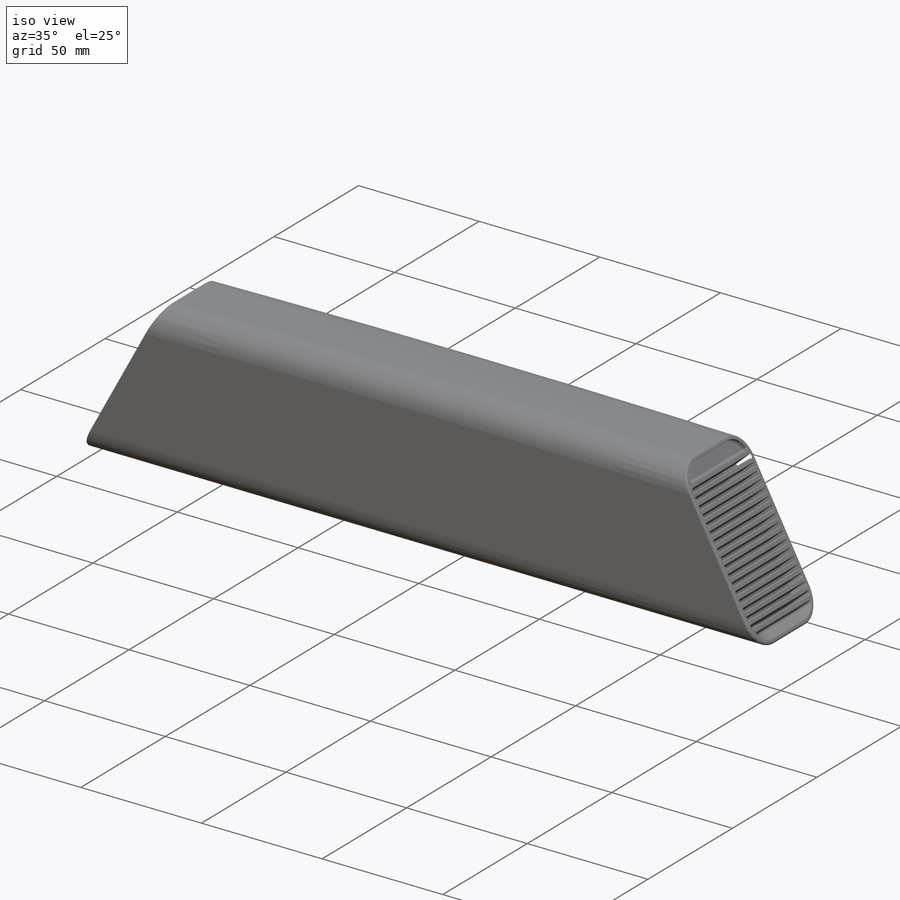
[diagram: iso view]
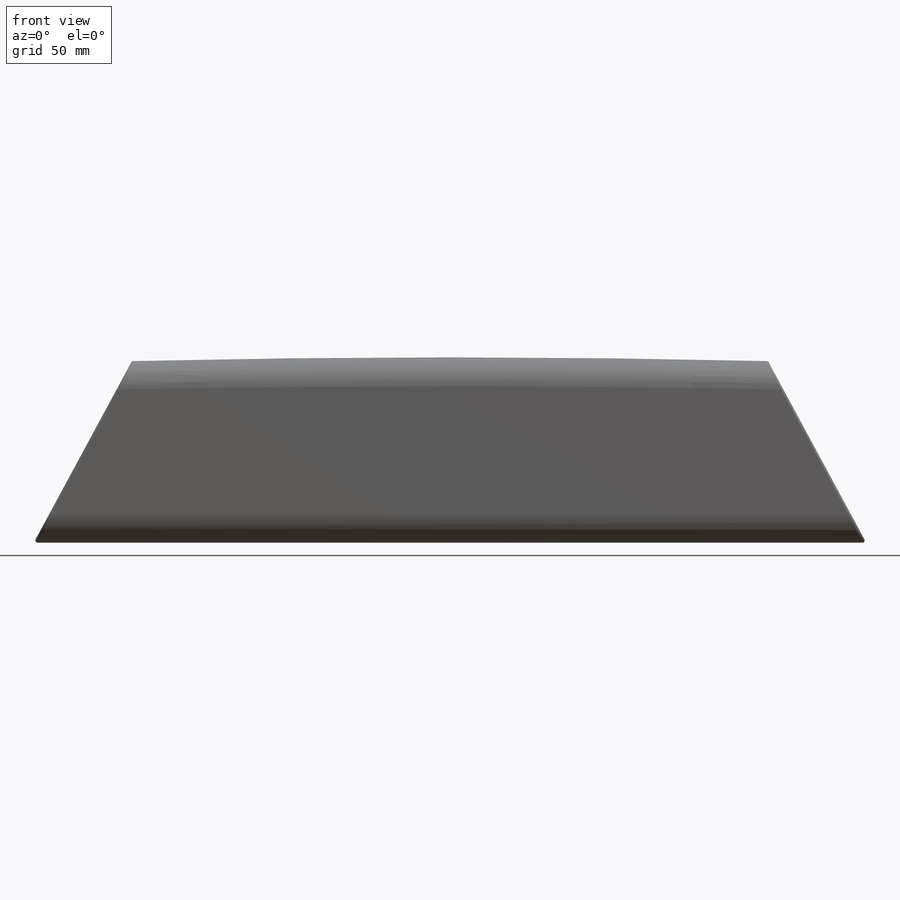
[diagram: front view]
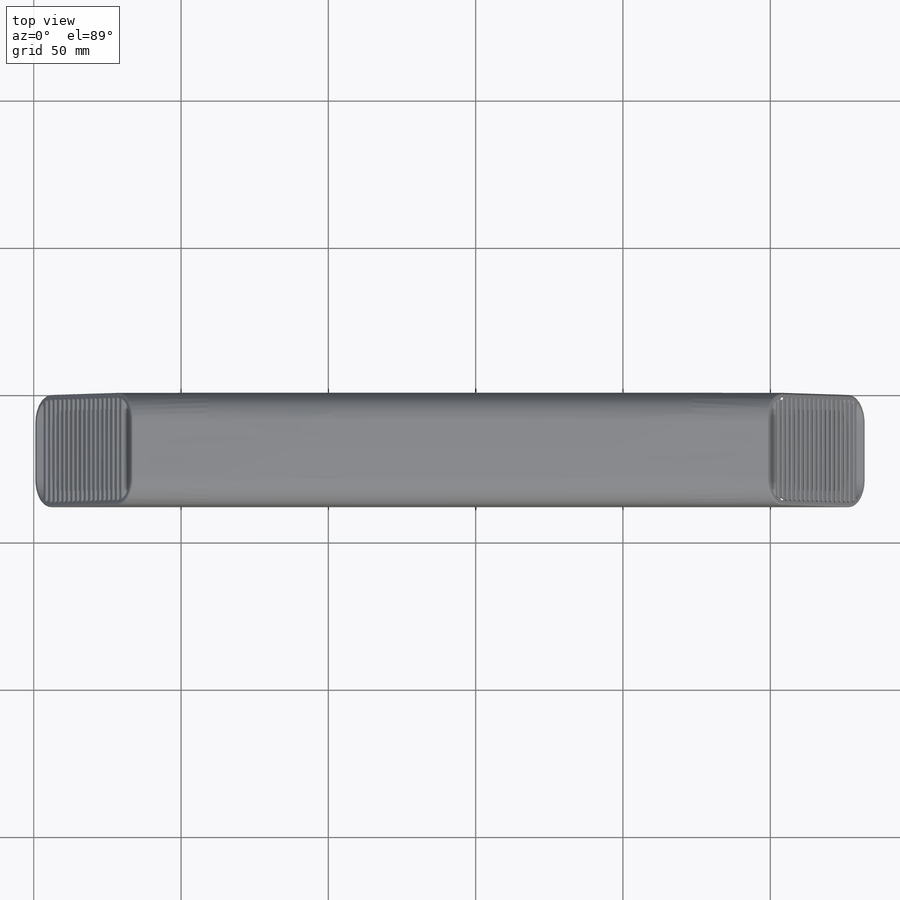
[diagram: top view]
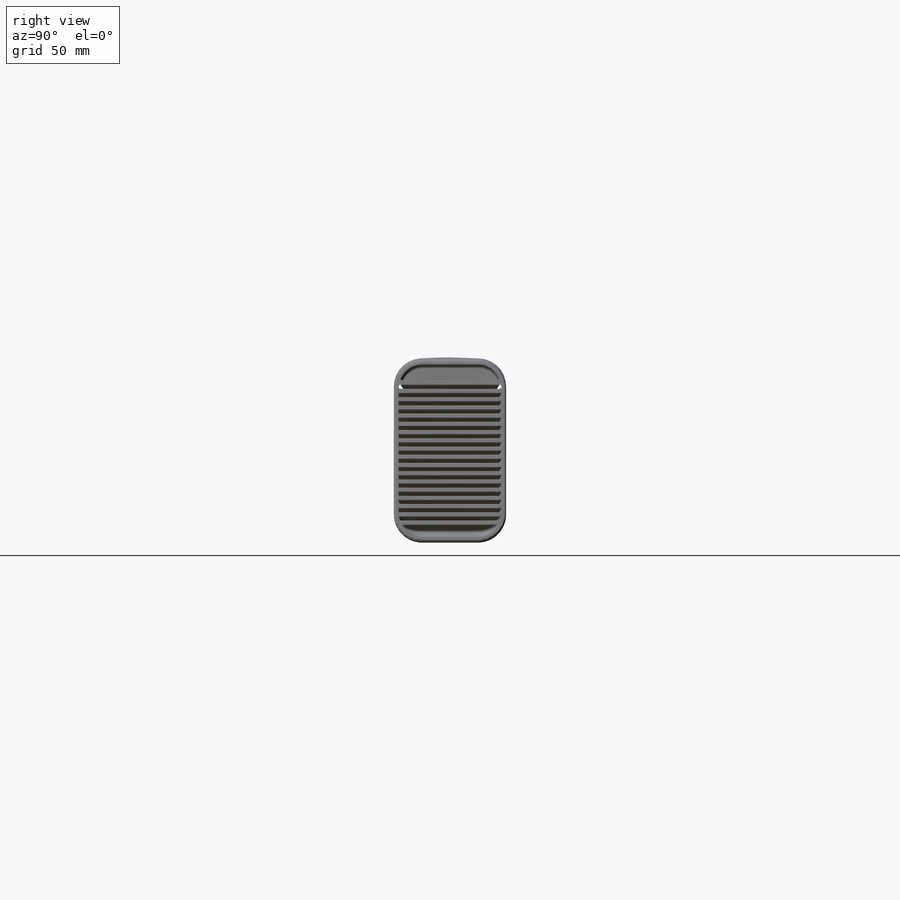
[diagram: right view]
SOLIDWORKS PART (.sldprt)
format: sldprt  version: not decoded by parser v0  size: 2,881,024 bytes
history: native  units: mm
features: sketch x36, cut_extrude x30, fillet x15, extrude x5, pattern_linear x4, material x1, dome x1 (+11 scaffold rows collapsed)
feature tree (103):
  scaffold x11  (default folders/planes/origin — collapsed)
  material  "Material <not specified>"
  sketch  "Sketch1"  dims[D1=282.575mm D3=282.575mm D2=61.6204mm]
  extrude  "Boss-Extrude2"  Depth=38.1mm
  dome  "Dome2"
  fillet  "Fillet5"  Radius=9.525mm
  fillet  "Fillet6"  Radius=9.525mm
  fillet  "Fillet7"  Radius=9.525mm
  fillet  "Fillet8"  Radius=0.79375mm
  sketch  "Sketch2"  dims[c1.D2=~6.575668mm c1.D3=2.5019mm c1.D1=79.375mm c2.D2=25.4mm c2.D3=25.4mm c2.D4=25.4mm]
  cut_extrude  "Cut-Extrude1"  Depth=0.396875mm
  fillet  "Fillet9"  Radius=0.396875mm
  sketch  "Sketch3"  dims[D2=~2.344758mm D1=25.4mm]
  cut_extrude  "Cut-Extrude2"  Depth=0.198437mm
  fillet  "Fillet10"  Radius=0.198437mm
  sketch  "Sketch4"  dims[D1=4.7625mm]
  cut_extrude  "Cut-Extrude4"  Depth=3.175mm
  sketch  "Sketch5"
  sketch  "Sketch6"  dims[D1=~0.79375mm]
  cut_extrude  "Cut-Extrude5"  Depth=6.35mm
  sketch  "Sketch7"  dims[D2=~0.396875mm D1=1.9431mm]
  extrude  "Boss-Extrude3"  [1 undecoded]
  pattern_linear  "LPattern1"  Count1=15 Count2=1 Spacing1=3.175mm Spacing2=2.54mm
  pattern_linear  "LPattern2"  Count1=4 Count2=1 Spacing1=3.175mm Spacing2=2.54mm
  sketch  "Sketch9"  dims[D1=0.0mm]
  extrude  "Boss-Extrude4"  Depth=3.81mm
  sketch  "Sketch11"
  cut_extrude  "Cut-Extrude7"  Depth=0.79375mm
  fillet  "Fillet11"  Radius=0.79375mm
  fillet  "Fillet12"  Radius=0.79375mm
  sketch  "Sketch14"  dims[D1=~0.79375mm]
  cut_extrude  "Cut-Extrude8"  Depth=6.35mm
  sketch  "Sketch15"  dims[D2=~0.396875mm D1=1.9431mm]
  extrude  "Boss-Extrude5"  [1 undecoded]
  pattern_linear  "LPattern3"  Count1=15 Count2=1 Spacing1=3.175mm Spacing2=2.54mm
  sketch  "Sketch16"  dims[D1=0.0mm]
  extrude  "Boss-Extrude6"  Depth=3.81mm
  sketch  "Sketch20"
  cut_extrude  "Cut-Extrude9"  Depth=0.85725mm
  pattern_linear  "LPattern4"  Count1=4 Count2=1 Spacing1=3.175mm Spacing2=2.54mm
  fillet  "Fillet13"  Radius=0.79375mm
  fillet  "Fillet14"  Radius=0.79375mm
  fillet  "Fillet17"  Radius=0.79375mm
  fillet  "Fillet18"  Radius=0.762mm
  fillet  "Fillet21"  Radius=0.79375mm
  fillet  "Fillet23"  Radius=0.79375mm
  sketch  "Sketch21"  dims[D1=79.375mm D2=3.175mm]
  cut_extrude  "Cut-Extrude10"  Depth=0.198437mm
  fillet  "Fillet24"  Radius=0.099219mm
  sketch  "Sketch22"  dims[D1=~7.778329mm]
  cut_extrude  "Cut-Extrude11"  Depth=0.396875mm
  sketch  "Sketch23"  dims[D1=4.7625mm]
  cut_extrude  "Cut-Extrude12"  Depth=0.396875mm
  sketch  "Sketch24"  dims[D1=~6.501157mm]
  cut_extrude  "Cut-Extrude13"  Depth=0.396875mm
  sketch  "Sketch25"  dims[D1=~6.080438mm]
  cut_extrude  "Cut-Extrude14"  Depth=0.396875mm
  sketch  "Sketch26"  dims[D1=~5.845661mm]
  cut_extrude  "Cut-Extrude15"  Depth=0.396875mm
  sketch  "Sketch27"  dims[D1=~4.668835mm]
  cut_extrude  "Cut-Extrude16"  Depth=0.396875mm
  sketch  "Sketch28"  dims[D1=~8.948789mm]
  cut_extrude  "Cut-Extrude17"  Depth=0.396875mm
  sketch  "Sketch29"  dims[D1=~8.259643mm]
  cut_extrude  "Cut-Extrude18"  Depth=0.396875mm
  sketch  "Sketch30"  dims[D1=~7.467385mm]
  cut_extrude  "Cut-Extrude19"  Depth=0.396875mm
  sketch  "Sketch31"  dims[D1=~5.856825mm]
  cut_extrude  "Cut-Extrude20"  Depth=0.396875mm
  sketch  "Sketch32"  dims[D1=~5.726503mm]
  cut_extrude  "Cut-Extrude21"  Depth=0.396875mm
  sketch  "Sketch33"  dims[D1=~4.217829mm]
  cut_extrude  "Cut-Extrude22"  Depth=0.396875mm
  sketch  "Sketch34"  dims[D1=~9.68375mm]
  cut_extrude  "Cut-Extrude23"  Depth=0.396875mm
  sketch  "Sketch35"  dims[D1=8.89mm]
  cut_extrude  "Cut-Extrude24"  Depth=0.396875mm
  sketch  "Sketch36"  dims[D1=~8.09625mm]
  cut_extrude  "Cut-Extrude25"  Depth=0.396875mm
  sketch  "Sketch37"  dims[D1=7.3025mm]
  cut_extrude  "Cut-Extrude26"  Depth=0.396875mm
  sketch  "Sketch38"  dims[D1=~6.50875mm]
  cut_extrude  "Cut-Extrude27"  Depth=0.396875mm
  sketch  "Sketch39"  dims[D1=1.0795mm]
  cut_extrude  "Cut-Extrude28"  Depth=0.099219mm
  sketch  "Sketch40"  dims[D1=4.1275mm]
  cut_extrude  "Cut-Extrude29"  Depth=0.79375mm
  sketch  "Sketch41"  dims[D1=~0.34663mm]
  cut_extrude  "Cut-Extrude30"  Depth=0.396875mm
  sketch  "Sketch42"  dims[D1=~4.400339mm]
  cut_extrude  "Cut-Extrude31"  Depth=0.79375mm
  sketch  "Sketch43"  dims[D1=~3.254016mm]
  cut_extrude  "Cut-Extrude32"  Depth=0.396875mm
decode coverage: 85 of 91 modeling features carry decoded parameters
note: ~ marks probable driven/reference dimensions
note: 2 parameter values undecoded
note: suppression state not decoded; provenance and decode notes live in map.json
